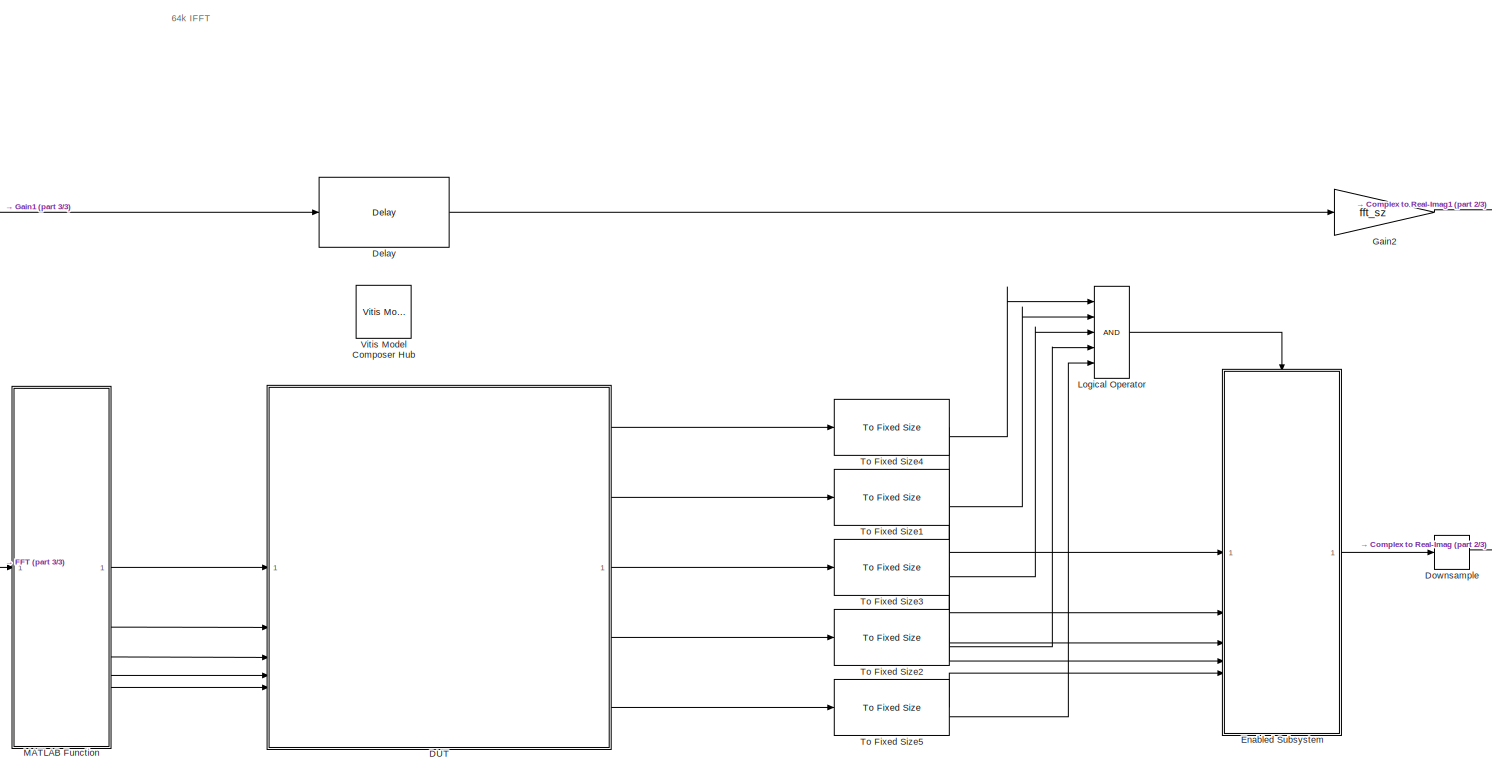
[diagram: root canvas - part 1/3, center side, full height]
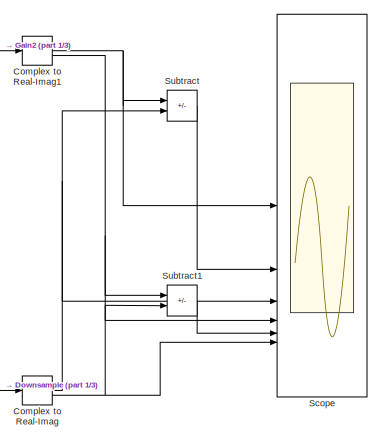
[diagram: root canvas - part 2/3, middle right region]
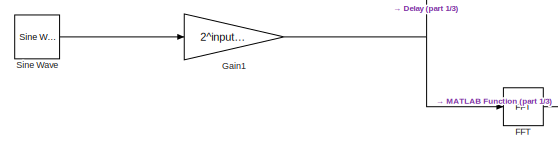
[diagram: root canvas - part 3/3, bottom left region]
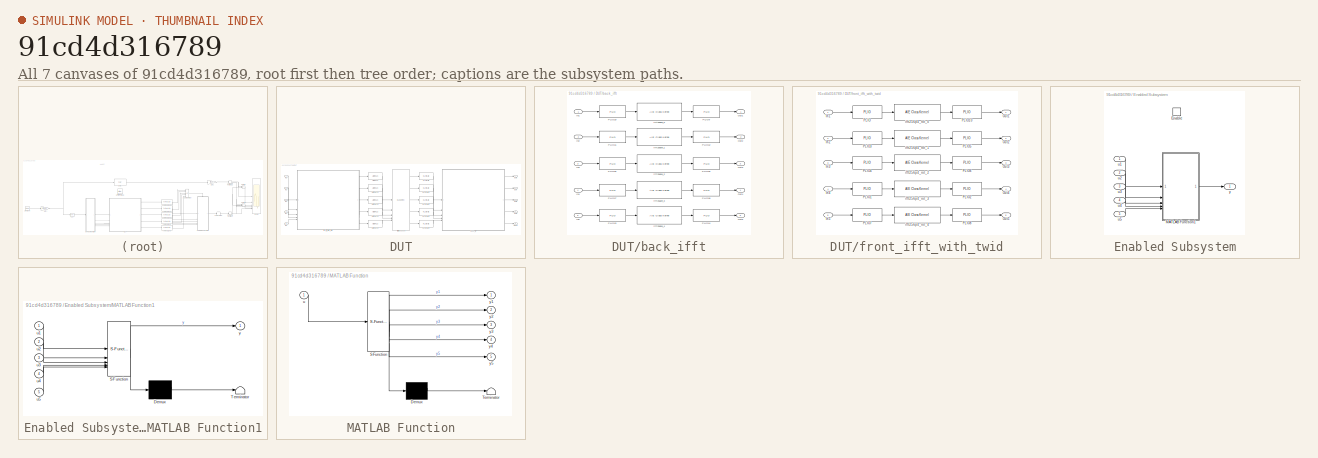
[diagram: thumbnail index - all 7 canvases of the model, root first then tree order]
MODEL slx_91cd4d316789
KIND model
CONFIG AbsTol = auto
CONFIG EnableMultiTasking = off
CONFIG FixedStep = auto
CONFIG MaxStep = auto
CONFIG MinStep = auto
CONFIG PostLoadFcn = samp_rate = 2e9;\nfft_sz = 65536;\nchirp_rate = 200e6 / 1e-3;\ntone_freq = 20e6;\ninput_bits = 12;\nalign_delay = 3 * fft_sz;\nbuff_init = complex(int32(zeros(256,1)));\nNSTREAM = 5;\nsimtime = 2.5e-4;
CONFIG RelTol = 1e-3
CONFIG SampleTimeConstraint = Unconstrained
CONFIG SolverName = VariableStepAuto
CONFIG StartTime = 0.0
CONFIG StopTime = simtime
BLOCK [ComplexToRealImag] Complex to Real-Imag
BLOCK [ComplexToRealImag] Complex to Real-Imag1
BLOCK [SubSystem] DUT
BLOCK [Reference] DUT/AIE to HLS  REF=aieUtilities/AIE to HLS
  NameLocation = top
  SourceBlock = aieUtilities/AIE to HLS
  SourceType = AIE to HLS
BLOCK [Reference] DUT/AIE to HLS1  REF=aieUtilities/AIE to HLS
  NameLocation = top
  SourceBlock = aieUtilities/AIE to HLS
  SourceType = AIE to HLS
BLOCK [Reference] DUT/AIE to HLS2  REF=aieUtilities/AIE to HLS
  NameLocation = top
  SourceBlock = aieUtilities/AIE to HLS
  SourceType = AIE to HLS
BLOCK [Reference] DUT/AIE to HLS3  REF=aieUtilities/AIE to HLS
  NameLocation = top
  SourceBlock = aieUtilities/AIE to HLS
  SourceType = AIE to HLS
BLOCK [Reference] DUT/AIE to HLS4  REF=aieUtilities/AIE to HLS
  NameLocation = top
  SourceBlock = aieUtilities/AIE to HLS
  SourceType = AIE to HLS
BLOCK [Reference] DUT/HLS to AIE  REF=aieUtilities/HLS to AIE
  NameLocation = top
  SourceBlock = aieUtilities/HLS to AIE
  SourceType = HLS to AIE
BLOCK [Reference] DUT/HLS to AIE1  REF=aieUtilities/HLS to AIE
  NameLocation = top
  SourceBlock = aieUtilities/HLS to AIE
  SourceType = HLS to AIE
BLOCK [Reference] DUT/HLS to AIE2  REF=aieUtilities/HLS to AIE
  NameLocation = top
  SourceBlock = aieUtilities/HLS to AIE
  SourceType = HLS to AIE
BLOCK [Reference] DUT/HLS to AIE3  REF=aieUtilities/HLS to AIE
  NameLocation = top
  SourceBlock = aieUtilities/HLS to AIE
  SourceType = HLS to AIE
BLOCK [Reference] DUT/HLS to AIE4  REF=aieUtilities/HLS to AIE
  NameLocation = top
  SourceBlock = aieUtilities/HLS to AIE
  SourceType = HLS to AIE
BLOCK [Inport] DUT/In1
BLOCK [Inport] DUT/In2
  Port = 2
BLOCK [Inport] DUT/In3
  Port = 3
BLOCK [Inport] DUT/In4
  Port = 4
BLOCK [Inport] DUT/In5
  Port = 5
BLOCK [Outport] DUT/Out10
  Port = 5
BLOCK [Outport] DUT/Out6
BLOCK [Outport] DUT/Out7
  Port = 2
BLOCK [Outport] DUT/Out8
  Port = 3
BLOCK [Outport] DUT/Out9
  Port = 4
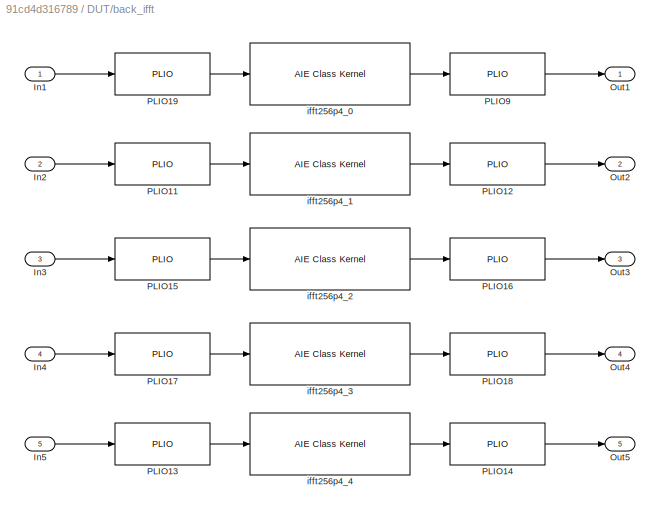
BLOCK [SubSystem] DUT/back_ifft
BLOCK [Inport] DUT/back_ifft/In1
BLOCK [Inport] DUT/back_ifft/In2
  Port = 2
BLOCK [Inport] DUT/back_ifft/In3
  Port = 3
BLOCK [Inport] DUT/back_ifft/In4
  Port = 4
BLOCK [Inport] DUT/back_ifft/In5
  Port = 5
BLOCK [Outport] DUT/back_ifft/Out1
BLOCK [Outport] DUT/back_ifft/Out2
  Port = 2
BLOCK [Outport] DUT/back_ifft/Out3
  Port = 3
BLOCK [Outport] DUT/back_ifft/Out4
  Port = 4
BLOCK [Outport] DUT/back_ifft/Out5
  Port = 5
BLOCK [Reference] DUT/back_ifft/PLIO11  REF=aieBasic/PLIO
  SourceBlock = aieBasic/PLIO
  SourceType = PLIO
BLOCK [Reference] DUT/back_ifft/PLIO12  REF=aieBasic/PLIO
  SourceBlock = aieBasic/PLIO
  SourceType = PLIO
BLOCK [Reference] DUT/back_ifft/PLIO13  REF=aieBasic/PLIO
  SourceBlock = aieBasic/PLIO
  SourceType = PLIO
BLOCK [Reference] DUT/back_ifft/PLIO14  REF=aieBasic/PLIO
  SourceBlock = aieBasic/PLIO
  SourceType = PLIO
BLOCK [Reference] DUT/back_ifft/PLIO15  REF=aieBasic/PLIO
  SourceBlock = aieBasic/PLIO
  SourceType = PLIO
BLOCK [Reference] DUT/back_ifft/PLIO16  REF=aieBasic/PLIO
  SourceBlock = aieBasic/PLIO
  SourceType = PLIO
BLOCK [Reference] DUT/back_ifft/PLIO17  REF=aieBasic/PLIO
  SourceBlock = aieBasic/PLIO
  SourceType = PLIO
BLOCK [Reference] DUT/back_ifft/PLIO18  REF=aieBasic/PLIO
  SourceBlock = aieBasic/PLIO
  SourceType = PLIO
BLOCK [Reference] DUT/back_ifft/PLIO19  REF=aieBasic/PLIO
  SourceBlock = aieBasic/PLIO
  SourceType = PLIO
BLOCK [Reference] DUT/back_ifft/PLIO9  REF=aieBasic/PLIO
  SourceBlock = aieBasic/PLIO
  SourceType = PLIO
BLOCK [Reference] DUT/back_ifft/ifft256p4_0  REF=aieBasic/AIE Class Kernel
  SourceBlock = aieBasic/AIE Class Kernel
  SourceType = AIE Class Kernel Function
BLOCK [Reference] DUT/back_ifft/ifft256p4_1  REF=aieBasic/AIE Class Kernel
  SourceBlock = aieBasic/AIE Class Kernel
  SourceType = AIE Class Kernel Function
BLOCK [Reference] DUT/back_ifft/ifft256p4_2  REF=aieBasic/AIE Class Kernel
  SourceBlock = aieBasic/AIE Class Kernel
  SourceType = AIE Class Kernel Function
BLOCK [Reference] DUT/back_ifft/ifft256p4_3  REF=aieBasic/AIE Class Kernel
  SourceBlock = aieBasic/AIE Class Kernel
  SourceType = AIE Class Kernel Function
BLOCK [Reference] DUT/back_ifft/ifft256p4_4  REF=aieBasic/AIE Class Kernel
  SourceBlock = aieBasic/AIE Class Kernel
  SourceType = AIE Class Kernel Function
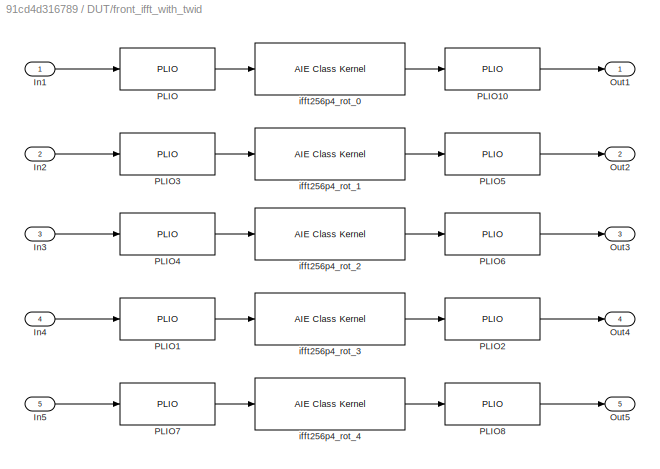
BLOCK [SubSystem] DUT/front_ifft_with_twid
BLOCK [Inport] DUT/front_ifft_with_twid/In1
BLOCK [Inport] DUT/front_ifft_with_twid/In2
  Port = 2
BLOCK [Inport] DUT/front_ifft_with_twid/In3
  Port = 3
BLOCK [Inport] DUT/front_ifft_with_twid/In4
  Port = 4
BLOCK [Inport] DUT/front_ifft_with_twid/In5
  Port = 5
BLOCK [Outport] DUT/front_ifft_with_twid/Out1
BLOCK [Outport] DUT/front_ifft_with_twid/Out2
  Port = 2
BLOCK [Outport] DUT/front_ifft_with_twid/Out3
  Port = 3
BLOCK [Outport] DUT/front_ifft_with_twid/Out4
  Port = 4
BLOCK [Outport] DUT/front_ifft_with_twid/Out5
  Port = 5
BLOCK [Reference] DUT/front_ifft_with_twid/PLIO  REF=aieBasic/PLIO
  SourceBlock = aieBasic/PLIO
  SourceType = PLIO
BLOCK [Reference] DUT/front_ifft_with_twid/PLIO1  REF=aieBasic/PLIO
  SourceBlock = aieBasic/PLIO
  SourceType = PLIO
BLOCK [Reference] DUT/front_ifft_with_twid/PLIO10  REF=aieBasic/PLIO
  SourceBlock = aieBasic/PLIO
  SourceType = PLIO
BLOCK [Reference] DUT/front_ifft_with_twid/PLIO2  REF=aieBasic/PLIO
  SourceBlock = aieBasic/PLIO
  SourceType = PLIO
BLOCK [Reference] DUT/front_ifft_with_twid/PLIO3  REF=aieBasic/PLIO
  SourceBlock = aieBasic/PLIO
  SourceType = PLIO
BLOCK [Reference] DUT/front_ifft_with_twid/PLIO4  REF=aieBasic/PLIO
  SourceBlock = aieBasic/PLIO
  SourceType = PLIO
BLOCK [Reference] DUT/front_ifft_with_twid/PLIO5  REF=aieBasic/PLIO
  SourceBlock = aieBasic/PLIO
  SourceType = PLIO
BLOCK [Reference] DUT/front_ifft_with_twid/PLIO6  REF=aieBasic/PLIO
  SourceBlock = aieBasic/PLIO
  SourceType = PLIO
BLOCK [Reference] DUT/front_ifft_with_twid/PLIO7  REF=aieBasic/PLIO
  SourceBlock = aieBasic/PLIO
  SourceType = PLIO
BLOCK [Reference] DUT/front_ifft_with_twid/PLIO8  REF=aieBasic/PLIO
  SourceBlock = aieBasic/PLIO
  SourceType = PLIO
BLOCK [Reference] DUT/front_ifft_with_twid/ifft256p4_rot_0  REF=aieBasic/AIE Class Kernel
  SourceBlock = aieBasic/AIE Class Kernel
  SourceType = AIE Class Kernel Function
BLOCK [Reference] DUT/front_ifft_with_twid/ifft256p4_rot_1  REF=aieBasic/AIE Class Kernel
  SourceBlock = aieBasic/AIE Class Kernel
  SourceType = AIE Class Kernel Function
BLOCK [Reference] DUT/front_ifft_with_twid/ifft256p4_rot_2  REF=aieBasic/AIE Class Kernel
  SourceBlock = aieBasic/AIE Class Kernel
  SourceType = AIE Class Kernel Function
BLOCK [Reference] DUT/front_ifft_with_twid/ifft256p4_rot_3  REF=aieBasic/AIE Class Kernel
  SourceBlock = aieBasic/AIE Class Kernel
  SourceType = AIE Class Kernel Function
BLOCK [Reference] DUT/front_ifft_with_twid/ifft256p4_rot_4  REF=aieBasic/AIE Class Kernel
  SourceBlock = aieBasic/AIE Class Kernel
  SourceType = AIE Class Kernel Function
BLOCK [Reference] DUT/ifft_transpose  REF=hlsBasic/HLS Kernel
  NameLocation = top
  SourceBlock = hlsBasic/HLS Kernel
  SourceType = HLS Kernel Function
BLOCK [Delay] Delay
  InputPortMap = u0
BLOCK [DownSample] Downsample
  InputProcessing = Elements as channels (sample based)
  N = 52
  RateOptions = Allow multirate processing
BLOCK [SubSystem] Enabled Subsystem
  TreatAsAtomicUnit = on
BLOCK [EnablePort] Enabled Subsystem/Enable
BLOCK [SubSystem] Enabled Subsystem/MATLAB Function1
  ErrorFcn = Stateflow.Translate.translate
  PermitHierarchicalResolution = ExplicitOnly
  SFBlockType = MATLAB Function
  TreatAsAtomicUnit = on
BLOCK [Demux] Enabled Subsystem/MATLAB Function1/ Demux 
  Outputs = 1
BLOCK [S-Function] Enabled Subsystem/MATLAB Function1/ SFunction 
  EnableBusSupport = on
  FunctionName = sf_sfun
  PortCounts = [5 2]
  SFcnIsStateOwnerBlock = off
  SFunctionDeploymentMode = off
  Tag = Stateflow S-Function 1
BLOCK [Terminator] Enabled Subsystem/MATLAB Function1/ Terminator 
BLOCK [Inport] Enabled Subsystem/MATLAB Function1/u1
BLOCK [Inport] Enabled Subsystem/MATLAB Function1/u2
  Port = 2
BLOCK [Inport] Enabled Subsystem/MATLAB Function1/u3
  Port = 3
BLOCK [Inport] Enabled Subsystem/MATLAB Function1/u4
  Port = 4
BLOCK [Inport] Enabled Subsystem/MATLAB Function1/u5
  Port = 5
BLOCK [Outport] Enabled Subsystem/MATLAB Function1/y
BLOCK [Inport] Enabled Subsystem/u1
BLOCK [Inport] Enabled Subsystem/u2
  Port = 2
BLOCK [Inport] Enabled Subsystem/u3
  Port = 3
BLOCK [Inport] Enabled Subsystem/u4
  Port = 4
BLOCK [Inport] Enabled Subsystem/u5
  Port = 5
BLOCK [Outport] Enabled Subsystem/y
BLOCK [Reference] FFT  REF=dspxfrm3/FFT
  SourceBlock = dspxfrm3/FFT
  SourceType = FFT
BLOCK [Gain] Gain1
  Gain = 2^input_bits
BLOCK [Gain] Gain2
  Gain = fft_sz
BLOCK [Logic] Logical Operator
  AllPortsSameDT = off
  Inputs = 5
  OutDataTypeStr = boolean
BLOCK [SubSystem] MATLAB Function
  ErrorFcn = Stateflow.Translate.translate
  PermitHierarchicalResolution = ExplicitOnly
  SFBlockType = MATLAB Function
  SystemSampleTime = fft_sz / (52 * samp_rate)
  TreatAsAtomicUnit = on
BLOCK [Demux] MATLAB Function/ Demux 
  Outputs = 1
BLOCK [S-Function] MATLAB Function/ SFunction 
  EnableBusSupport = on
  FunctionName = sf_sfun
  PortCounts = [1 6]
  SFcnIsStateOwnerBlock = off
  SFunctionDeploymentMode = off
  Tag = Stateflow S-Function 2
BLOCK [Terminator] MATLAB Function/ Terminator 
BLOCK [Inport] MATLAB Function/u
BLOCK [Outport] MATLAB Function/y1
BLOCK [Outport] MATLAB Function/y2
  Port = 2
BLOCK [Outport] MATLAB Function/y3
  Port = 3
BLOCK [Outport] MATLAB Function/y4
  Port = 4
BLOCK [Outport] MATLAB Function/y5
  Port = 5
BLOCK [Scope] Scope
  Floating = off
  NumInputPorts = 6
  ScopeSpecificationString = Simulink.scopes.TimeScopeBlockCfg('CurrentConfiguration', extmgr.ConfigurationSet(extmgr.Configuration('Core','General UI',true),extmgr.Configuration('Core','Source UI',true),extmgr.Configuration('Sources','WiredSimulink',true),extmgr.Configuration('Visuals','Time Domain',true,'SerializedDisplays',{struct('MinYLimReal','-335544320','MaxYLimReal','335544320','YLabelReal','','MinYLimMag','0','MaxYLi...<+5451ch>
BLOCK [Reference] Sine Wave  REF=dspsrcs4/Sine Wave
  SourceBlock = dspsrcs4/Sine Wave
  SourceType = Sine Wave
BLOCK [Sum] Subtract
  IconShape = rectangular
  Inputs = +-
BLOCK [Sum] Subtract1
  IconShape = rectangular
  Inputs = +-
BLOCK [Reference] To Fixed Size1  REF=aieUtilities/To Fixed Size
  SourceBlock = aieUtilities/To Fixed Size
  SourceType = To Fixed Size
BLOCK [Reference] To Fixed Size2  REF=aieUtilities/To Fixed Size
  SourceBlock = aieUtilities/To Fixed Size
  SourceType = To Fixed Size
BLOCK [Reference] To Fixed Size3  REF=aieUtilities/To Fixed Size
  SourceBlock = aieUtilities/To Fixed Size
  SourceType = To Fixed Size
BLOCK [Reference] To Fixed Size4  REF=aieUtilities/To Fixed Size
  SourceBlock = aieUtilities/To Fixed Size
  SourceType = To Fixed Size
BLOCK [Reference] To Fixed Size5  REF=aieUtilities/To Fixed Size
  SourceBlock = aieUtilities/To Fixed Size
  SourceType = To Fixed Size
BLOCK [Reference] Vitis Model Composer Hub  REF=vmcUtilities/Vitis Model Composer Hub
  SourceBlock = vmcUtilities/Vitis Model Composer Hub
  SourceType = VMC Hub
  Tag = genX
  UserDataPersistent = on
ANNOTATION (root): 64k IFFT
NET Complex to Real-Imag1:1 -> Scope:1, Subtract:1
NET Complex to Real-Imag1:2 -> Scope:4, Subtract1:1
NET Complex to Real-Imag:1 -> Scope:3, Subtract:2
NET Complex to Real-Imag:2 -> Scope:6, Subtract1:2
LINE DUT/AIE to HLS1:1 -> DUT/ifft_transpose:2
LINE DUT/AIE to HLS2:1 -> DUT/ifft_transpose:3
LINE DUT/AIE to HLS3:1 -> DUT/ifft_transpose:4
LINE DUT/AIE to HLS4:1 -> DUT/ifft_transpose:5
LINE DUT/AIE to HLS:1 -> DUT/ifft_transpose:1
LINE DUT/HLS to AIE1:1 -> DUT/back_ifft:2
LINE DUT/HLS to AIE2:1 -> DUT/back_ifft:3
LINE DUT/HLS to AIE3:1 -> DUT/back_ifft:4
LINE DUT/HLS to AIE4:1 -> DUT/back_ifft:5
LINE DUT/HLS to AIE:1 -> DUT/back_ifft:1
LINE DUT/In1:1 -> DUT/front_ifft_with_twid:1
LINE DUT/In2:1 -> DUT/front_ifft_with_twid:2
LINE DUT/In3:1 -> DUT/front_ifft_with_twid:3
LINE DUT/In4:1 -> DUT/front_ifft_with_twid:4
LINE DUT/In5:1 -> DUT/front_ifft_with_twid:5
LINE DUT/back_ifft/In1:1 -> DUT/back_ifft/PLIO19:1
LINE DUT/back_ifft/In2:1 -> DUT/back_ifft/PLIO11:1
LINE DUT/back_ifft/In3:1 -> DUT/back_ifft/PLIO15:1
LINE DUT/back_ifft/In4:1 -> DUT/back_ifft/PLIO17:1
LINE DUT/back_ifft/In5:1 -> DUT/back_ifft/PLIO13:1
LINE DUT/back_ifft/PLIO11:1 -> DUT/back_ifft/ifft256p4_1:1
LINE DUT/back_ifft/PLIO12:1 -> DUT/back_ifft/Out2:1
LINE DUT/back_ifft/PLIO13:1 -> DUT/back_ifft/ifft256p4_4:1
LINE DUT/back_ifft/PLIO14:1 -> DUT/back_ifft/Out5:1
LINE DUT/back_ifft/PLIO15:1 -> DUT/back_ifft/ifft256p4_2:1
LINE DUT/back_ifft/PLIO16:1 -> DUT/back_ifft/Out3:1
LINE DUT/back_ifft/PLIO17:1 -> DUT/back_ifft/ifft256p4_3:1
LINE DUT/back_ifft/PLIO18:1 -> DUT/back_ifft/Out4:1
LINE DUT/back_ifft/PLIO19:1 -> DUT/back_ifft/ifft256p4_0:1
LINE DUT/back_ifft/PLIO9:1 -> DUT/back_ifft/Out1:1
LINE DUT/back_ifft/ifft256p4_0:1 -> DUT/back_ifft/PLIO9:1
LINE DUT/back_ifft/ifft256p4_1:1 -> DUT/back_ifft/PLIO12:1
LINE DUT/back_ifft/ifft256p4_2:1 -> DUT/back_ifft/PLIO16:1
LINE DUT/back_ifft/ifft256p4_3:1 -> DUT/back_ifft/PLIO18:1
LINE DUT/back_ifft/ifft256p4_4:1 -> DUT/back_ifft/PLIO14:1
LINE DUT/back_ifft:1 -> DUT/Out6:1
LINE DUT/back_ifft:2 -> DUT/Out7:1
LINE DUT/back_ifft:3 -> DUT/Out8:1
LINE DUT/back_ifft:4 -> DUT/Out9:1
LINE DUT/back_ifft:5 -> DUT/Out10:1
LINE DUT/front_ifft_with_twid/In1:1 -> DUT/front_ifft_with_twid/PLIO:1
LINE DUT/front_ifft_with_twid/In2:1 -> DUT/front_ifft_with_twid/PLIO3:1
LINE DUT/front_ifft_with_twid/In3:1 -> DUT/front_ifft_with_twid/PLIO4:1
LINE DUT/front_ifft_with_twid/In4:1 -> DUT/front_ifft_with_twid/PLIO1:1
LINE DUT/front_ifft_with_twid/In5:1 -> DUT/front_ifft_with_twid/PLIO7:1
LINE DUT/front_ifft_with_twid/PLIO10:1 -> DUT/front_ifft_with_twid/Out1:1
LINE DUT/front_ifft_with_twid/PLIO1:1 -> DUT/front_ifft_with_twid/ifft256p4_rot_3:1
LINE DUT/front_ifft_with_twid/PLIO2:1 -> DUT/front_ifft_with_twid/Out4:1
LINE DUT/front_ifft_with_twid/PLIO3:1 -> DUT/front_ifft_with_twid/ifft256p4_rot_1:1
LINE DUT/front_ifft_with_twid/PLIO4:1 -> DUT/front_ifft_with_twid/ifft256p4_rot_2:1
LINE DUT/front_ifft_with_twid/PLIO5:1 -> DUT/front_ifft_with_twid/Out2:1
LINE DUT/front_ifft_with_twid/PLIO6:1 -> DUT/front_ifft_with_twid/Out3:1
LINE DUT/front_ifft_with_twid/PLIO7:1 -> DUT/front_ifft_with_twid/ifft256p4_rot_4:1
LINE DUT/front_ifft_with_twid/PLIO8:1 -> DUT/front_ifft_with_twid/Out5:1
LINE DUT/front_ifft_with_twid/PLIO:1 -> DUT/front_ifft_with_twid/ifft256p4_rot_0:1
LINE DUT/front_ifft_with_twid/ifft256p4_rot_0:1 -> DUT/front_ifft_with_twid/PLIO10:1
LINE DUT/front_ifft_with_twid/ifft256p4_rot_1:1 -> DUT/front_ifft_with_twid/PLIO5:1
LINE DUT/front_ifft_with_twid/ifft256p4_rot_2:1 -> DUT/front_ifft_with_twid/PLIO6:1
LINE DUT/front_ifft_with_twid/ifft256p4_rot_3:1 -> DUT/front_ifft_with_twid/PLIO2:1
LINE DUT/front_ifft_with_twid/ifft256p4_rot_4:1 -> DUT/front_ifft_with_twid/PLIO8:1
LINE DUT/front_ifft_with_twid:1 -> DUT/AIE to HLS:1
LINE DUT/front_ifft_with_twid:2 -> DUT/AIE to HLS1:1
LINE DUT/front_ifft_with_twid:3 -> DUT/AIE to HLS2:1
LINE DUT/front_ifft_with_twid:4 -> DUT/AIE to HLS3:1
LINE DUT/front_ifft_with_twid:5 -> DUT/AIE to HLS4:1
LINE DUT/ifft_transpose:1 -> DUT/HLS to AIE:1
LINE DUT/ifft_transpose:2 -> DUT/HLS to AIE1:1
LINE DUT/ifft_transpose:3 -> DUT/HLS to AIE2:1
LINE DUT/ifft_transpose:4 -> DUT/HLS to AIE3:1
LINE DUT/ifft_transpose:5 -> DUT/HLS to AIE4:1
LINE DUT:1 -> To Fixed Size4:1
LINE DUT:2 -> To Fixed Size1:1
LINE DUT:3 -> To Fixed Size3:1
LINE DUT:4 -> To Fixed Size2:1
LINE DUT:5 -> To Fixed Size5:1
LINE Delay:1 -> Gain2:1
LINE Downsample:1 -> Complex to Real-Imag:1
LINE Enabled Subsystem/MATLAB Function1:1 -> Enabled Subsystem/y:1
LINE Enabled Subsystem/u1:1 -> Enabled Subsystem/MATLAB Function1:1
LINE Enabled Subsystem/u2:1 -> Enabled Subsystem/MATLAB Function1:2
LINE Enabled Subsystem/u3:1 -> Enabled Subsystem/MATLAB Function1:3
LINE Enabled Subsystem/u4:1 -> Enabled Subsystem/MATLAB Function1:4
LINE Enabled Subsystem/u5:1 -> Enabled Subsystem/MATLAB Function1:5
LINE Enabled Subsystem:1 -> Downsample:1
LINE FFT:1 -> MATLAB Function:1
NET Gain1:1 -> Delay:1, FFT:1
LINE Gain2:1 -> Complex to Real-Imag1:1
LINE Logical Operator:1 -> Enabled Subsystem:enable
LINE MATLAB Function:1 -> DUT:1
LINE MATLAB Function:2 -> DUT:2
LINE MATLAB Function:3 -> DUT:3
LINE MATLAB Function:4 -> DUT:4
LINE MATLAB Function:5 -> DUT:5
LINE Sine Wave:1 -> Gain1:1
LINE Subtract1:1 -> Scope:5
LINE Subtract:1 -> Scope:2
LINE To Fixed Size1:1 -> Enabled Subsystem:2
LINE To Fixed Size1:2 -> Logical Operator:2
LINE To Fixed Size2:1 -> Enabled Subsystem:4
LINE To Fixed Size2:2 -> Logical Operator:4
LINE To Fixed Size3:1 -> Enabled Subsystem:3
LINE To Fixed Size3:2 -> Logical Operator:3
LINE To Fixed Size4:1 -> Enabled Subsystem:1
LINE To Fixed Size4:2 -> Logical Operator:1
LINE To Fixed Size5:1 -> Enabled Subsystem:5
LINE To Fixed Size5:2 -> Logical Operator:5
note: NET lines group one-source signal fan-out (src -> all destinations, sorted); 1:1 wires keep LINE
CHART Enabled
Subsystem/MATLAB Function1 states=1 transitions=1
  STATE_LABEL 'eML_blk_kernel()'
  STATE_LABEL "SCRIPT:\nfunction y = ifft_combine(u1, u2, u3, u4, u5)\n\npersistent idx ymat yp\nif isempty(idx)\n    idx = 1;\n    ymat = complex(zeros(260,260));\n    yp = complex(zeros(65536,1));\nend\n\nymat((1:5)+5*(idx-1),:) = [u1.'; u2.'; u3.'; u4.'; u5.'];\n\nif idx == 52\n    idx = 1;\n    yp = reshape(ymat(1:256,1:256), 65536, 1);\nelse\n    idx = idx + 1;\nend\n\ny = double(yp);\n"
CHART MATLAB Function states=1 transitions=1
  STATE_LABEL 'eML_blk_kernel()'
  STATE_LABEL 'SCRIPT:\nfunction [y1, y2, y3, y4, y5] = segment_data(u)\n\npersistent idx um1 um2 um3 um4 um5\nif isempty(idx)\n    idx = 52;\n    um1 = zeros(52,260);\n    um2 = zeros(52,260);\n    um3 = zeros(52,260);\n    um4 = zeros(52,260);\n    um5 = zeros(52,260);\nend\n\nif idx == 52\n    umat = [[reshape(u,256,256); zeros(4,256)] zeros(260,4)];\n    um1 = umat(1:5:end,:);\n    um2 = umat(2:5:end,:);\n    um3 = umat(3:5:...<+403ch>'
CHART  states=0 transitions=0
CHART  states=0 transitions=0
